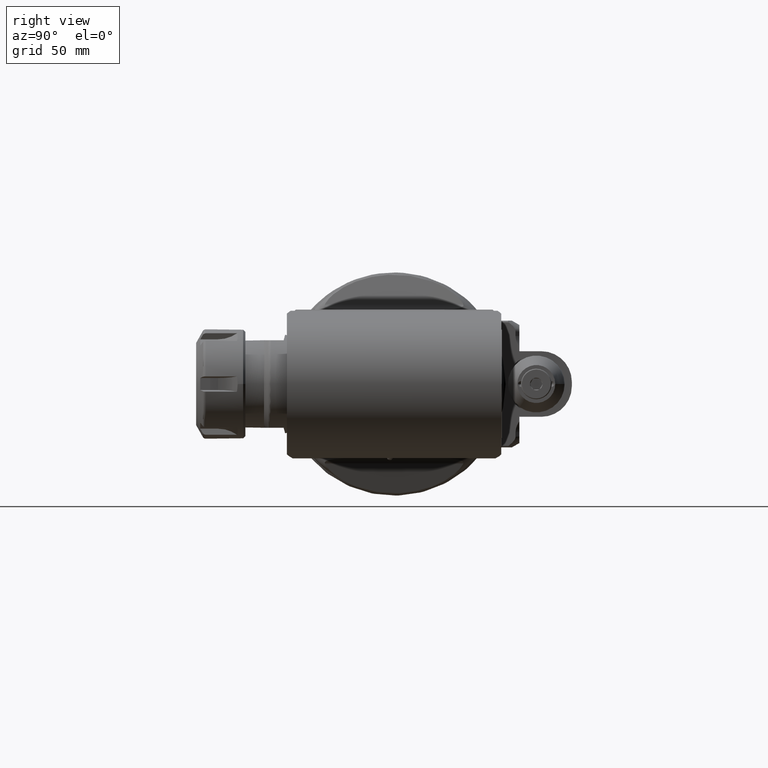
[diagram: clean part render]
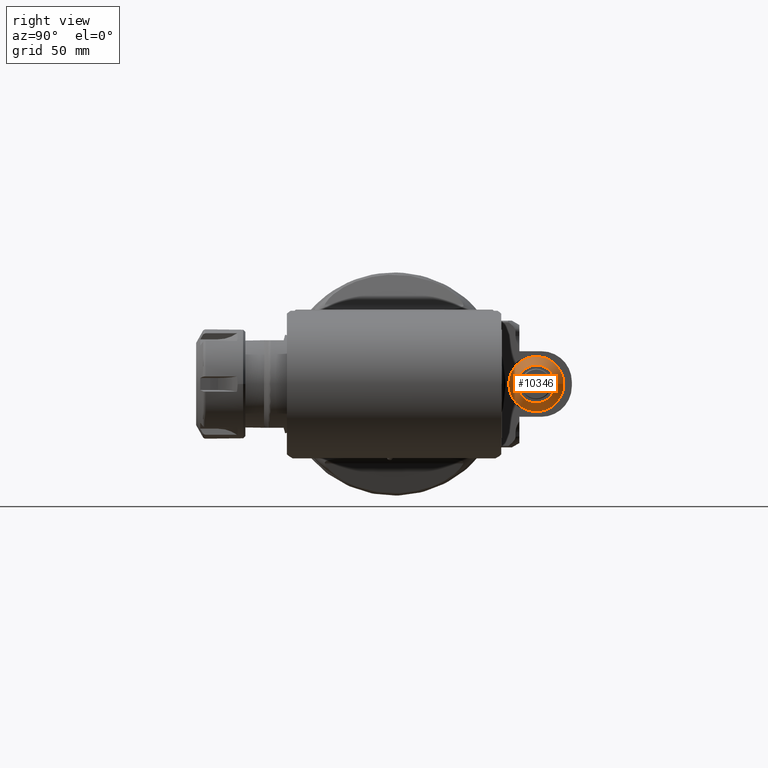
[diagram: same view with one face highlighted and labeled with its STEP entity id]
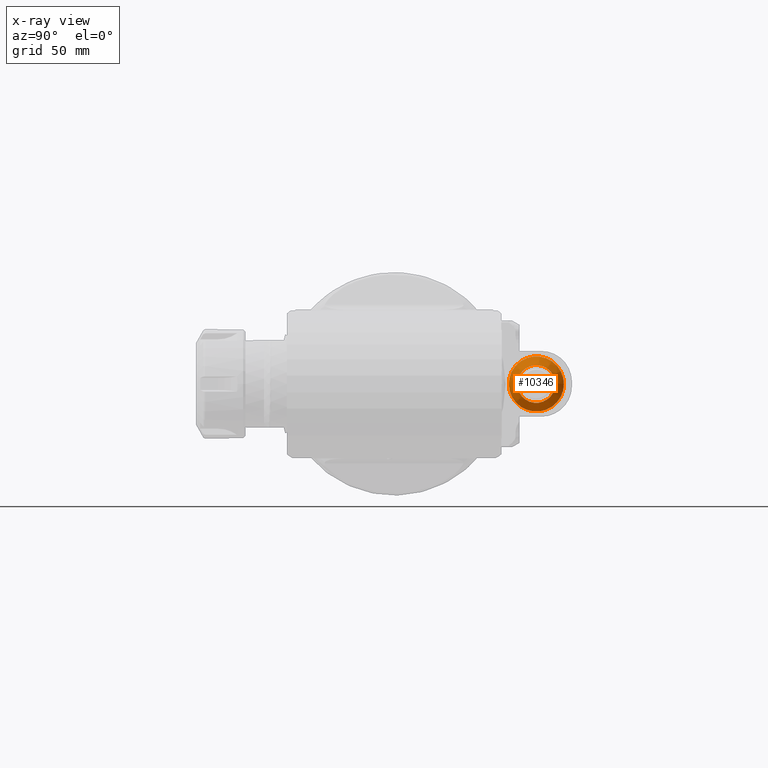
[diagram: x-ray of the same camera — body ghosted, the highlighted face saturated]
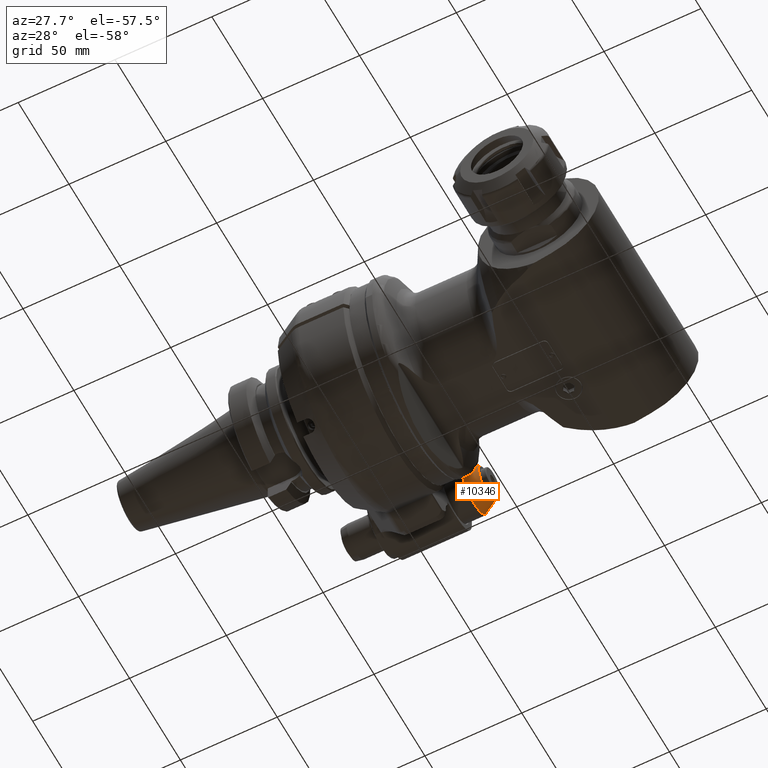
[diagram: same view with one face highlighted and labeled with its STEP entity id]
A machine part, right view. The second image highlights one B-rep face of the part: STEP entity #10346.
The next image is the same camera in x-ray: the body ghosted, the highlighted face saturated — about 0% of this face is hidden behind the body in this view.
A second angle (auxiliary view) of the same face is appended — the face is thin or edge-on in the first view.
In plain terms, the highlighted conical surface has half-angle 30 deg.
Its self-contained STEP definition (entity closure, byte-faithful):
#122=CONICAL_SURFACE('',#11214,10.63397459622,0.523598775598299);
#1294=LINE('',#21899,#2053);
#2053=VECTOR('',#13371,10.63397459622);
#2714=FACE_OUTER_BOUND('',#3320,.T.);
#3320=EDGE_LOOP('',(#8858,#8859,#8860,#8861));
#3781=CIRCLE('',#11213,12.59807621135);
#3782=CIRCLE('',#11215,8.669872981078);
#4742=VERTEX_POINT('',#21894);
#4743=VERTEX_POINT('',#21898);
#6158=EDGE_CURVE('',#4742,#4742,#3781,.T.);
#6159=EDGE_CURVE('',#4742,#4743,#1294,.T.);
#6160=EDGE_CURVE('',#4743,#4743,#3782,.T.);
#8858=ORIENTED_EDGE('',*,*,#6158,.F.);
#8859=ORIENTED_EDGE('',*,*,#6159,.T.);
#8860=ORIENTED_EDGE('',*,*,#6160,.F.);
#8861=ORIENTED_EDGE('',*,*,#6159,.F.);
#10346=ADVANCED_FACE('',(#2714),#122,.T.);
#11213=AXIS2_PLACEMENT_3D('',#21896,#13367,#13368);
#11214=AXIS2_PLACEMENT_3D('',#21897,#13369,#13370);
#11215=AXIS2_PLACEMENT_3D('',#21900,#13372,#13373);
#13367=DIRECTION('center_axis',(-1.,0.,0.));
#13368=DIRECTION('ref_axis',(0.,1.,0.));
#13369=DIRECTION('center_axis',(-1.,0.,0.));
#13370=DIRECTION('ref_axis',(0.,-1.,0.));
#13371=DIRECTION('',(0.866025403784439,-0.5,6.12323399573676E-17));
#13372=DIRECTION('center_axis',(1.,0.,0.));
#13373=DIRECTION('ref_axis',(0.,-1.,0.));
#21894=CARTESIAN_POINT('',(-7.303847577293,77.59807621135,0.));
#21896=CARTESIAN_POINT('Origin',(-7.303847577293,65.,0.));
#21897=CARTESIAN_POINT('Origin',(-3.901923788647,65.,0.));
#21898=CARTESIAN_POINT('',(-0.5,73.66987298108,0.));
#21899=CARTESIAN_POINT('',(-3.901923788647,75.63397459622,-1.30228629514751E-15));
#21900=CARTESIAN_POINT('Origin',(-0.5,65.,0.));